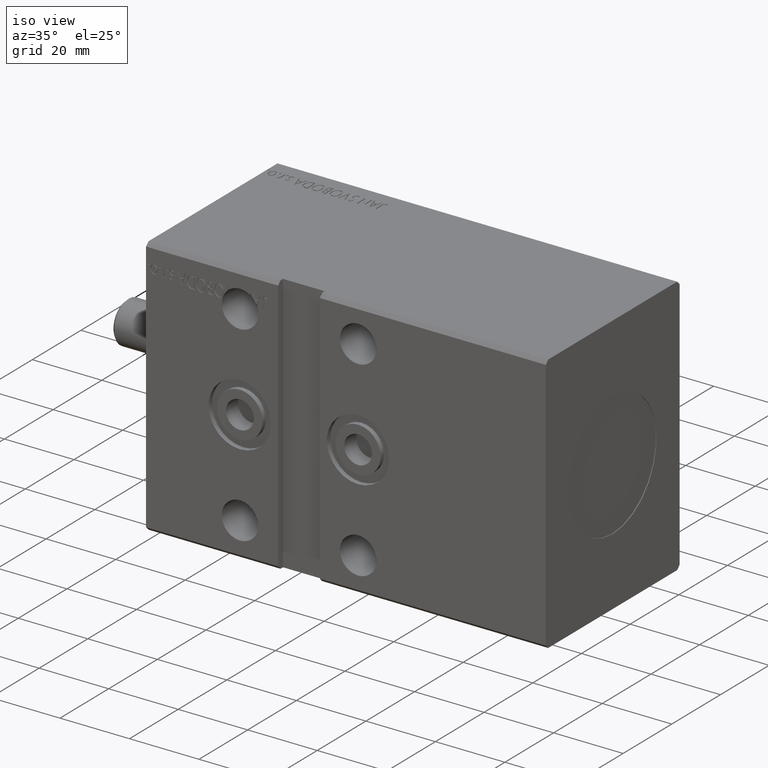
[diagram: clean part render]
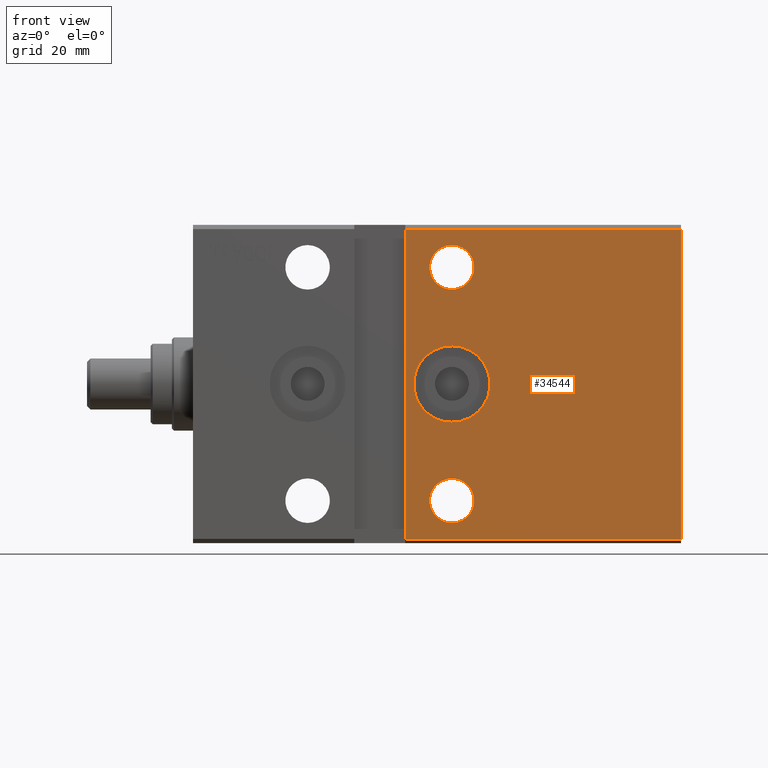
[diagram: tour spotlight — one face highlighted and labeled with its STEP entity id]
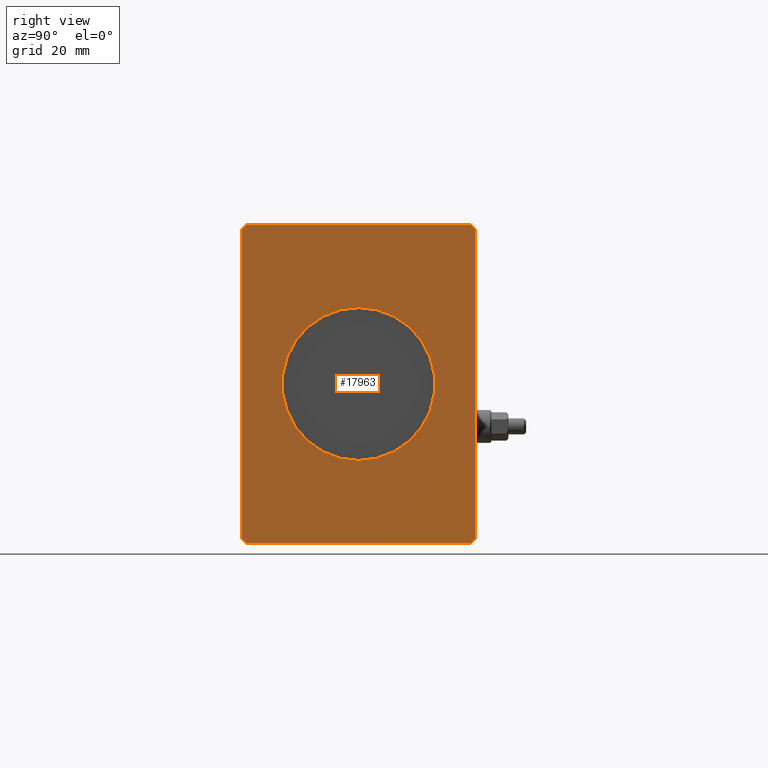
[diagram: tour spotlight — one face highlighted and labeled with its STEP entity id]
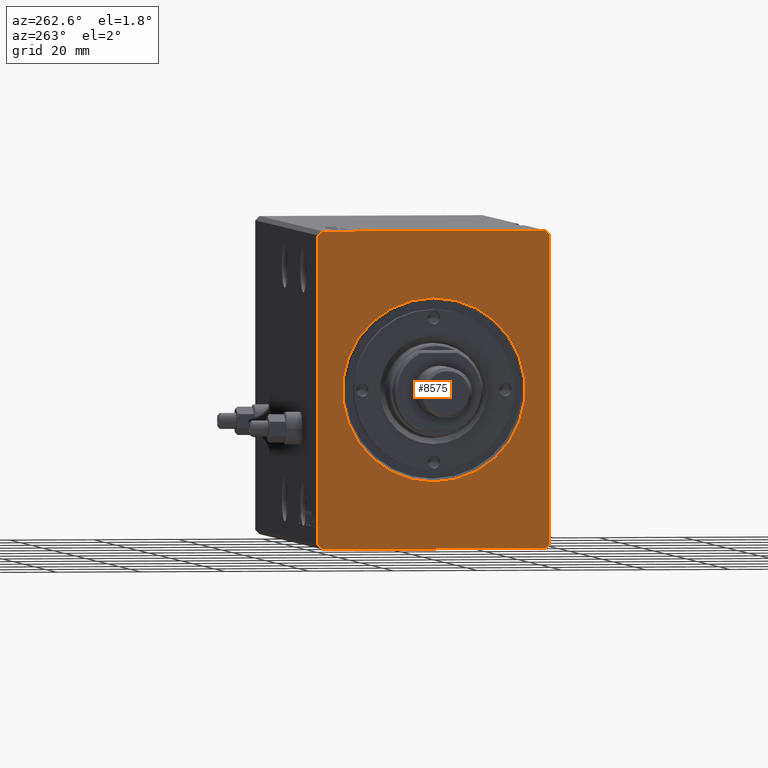
[diagram: tour spotlight — one face highlighted and labeled with its STEP entity id]
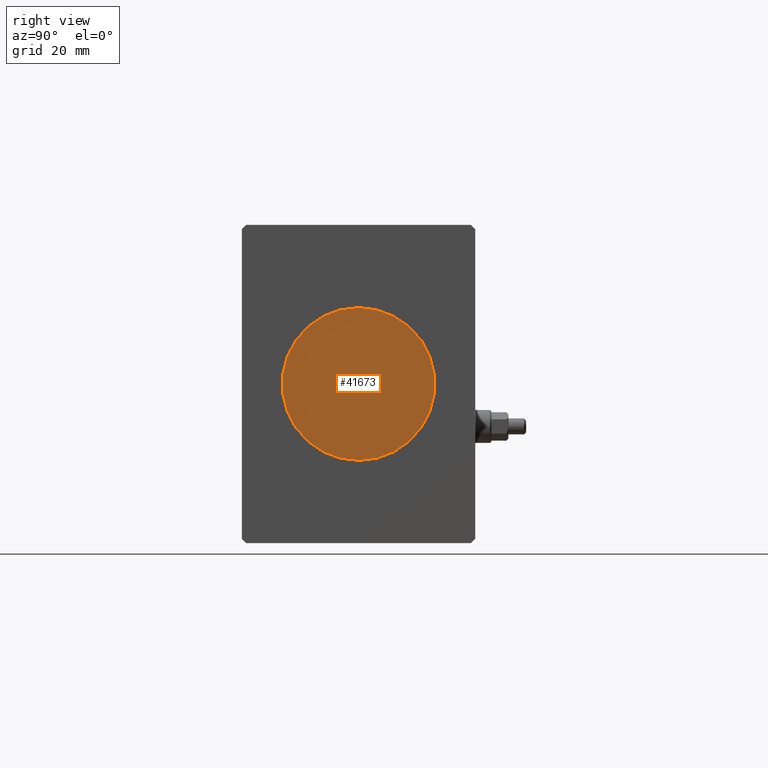
[diagram: tour spotlight — one face highlighted and labeled with its STEP entity id]
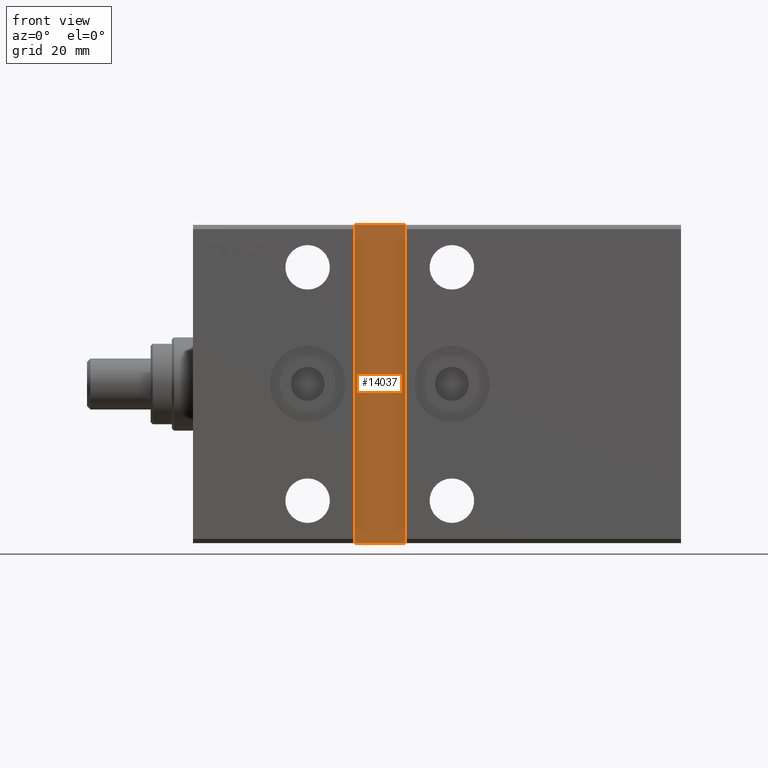
[diagram: tour spotlight — one face highlighted and labeled with its STEP entity id]
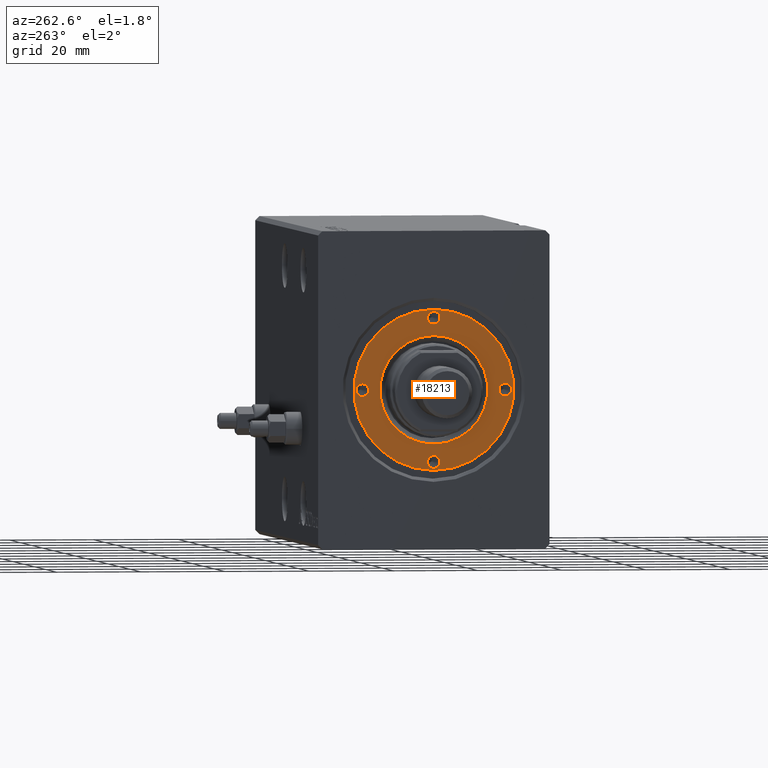
[diagram: tour spotlight — one face highlighted and labeled with its STEP entity id]
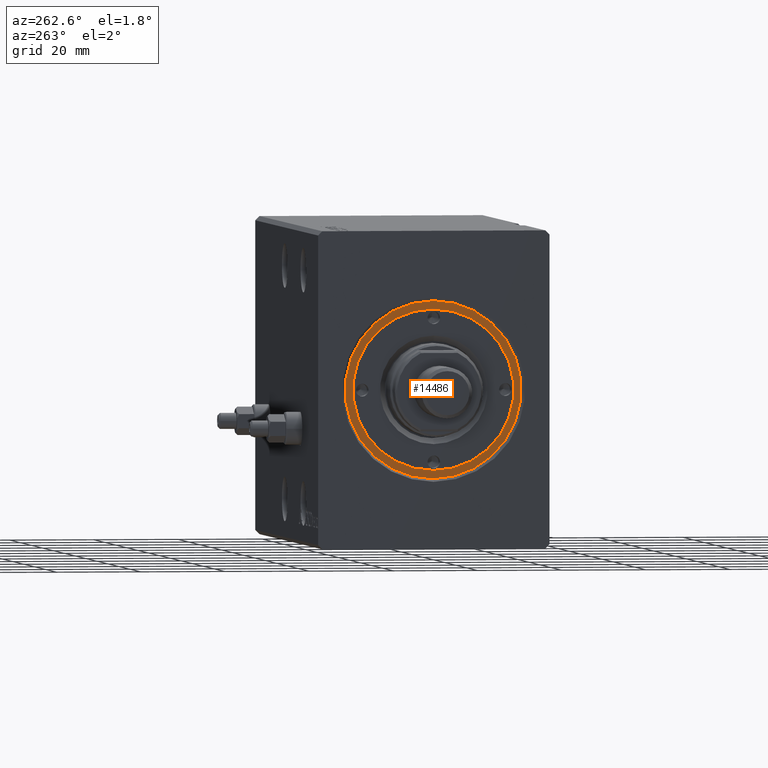
[diagram: tour spotlight — one face highlighted and labeled with its STEP entity id]
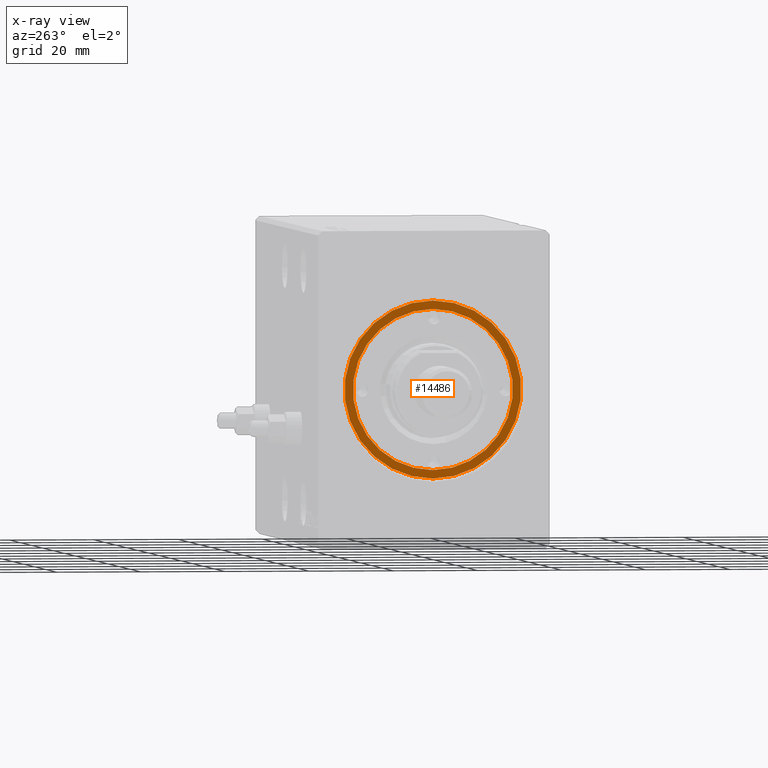
[diagram: x-ray of the same camera — body ghosted, this tour face saturated]
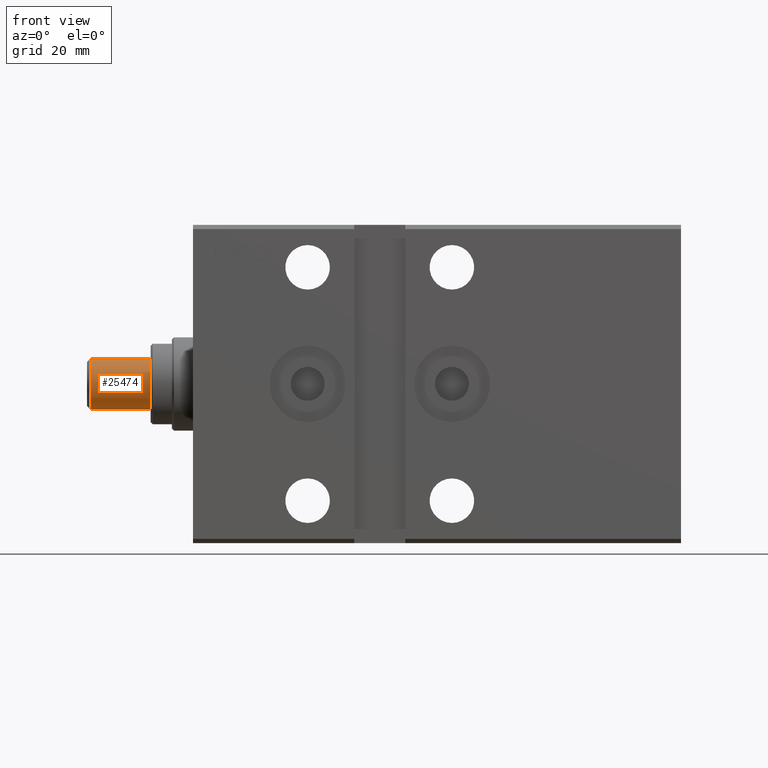
[diagram: tour spotlight — one face highlighted and labeled with its STEP entity id]
A machine part: a face-by-face anatomy tour. The part has 862 B-rep faces; the first image is the clean iso view, then the 8 largest visible faces are spotlighted one at a time (largest first), each with its STEP entity span.

Face 1 — front view, entity #34544. In plain terms, the highlighted planar face has unit normal (0, 1, 0).
Definition (entity closure, byte-faithful):
#166 = CARTESIAN_POINT ( 'NONE',  ( 115.0000000000000000, -27.50000000000000711, 36.50000000000000711 ) ) ;
#255 = EDGE_CURVE ( 'NONE', #34606, #4152, #31248, .T. ) ;
#677 = DIRECTION ( 'NONE',  ( -0.000000000000000000, 1.000000000000000000, 4.752667057470705491E-17 ) ) ;
#1384 = EDGE_CURVE ( 'NONE', #13478, #39769, #4137, .T. ) ;
#2053 = EDGE_LOOP ( 'NONE', ( #22631, #32418 ) ) ;
#2115 = FACE_BOUND ( 'NONE', #2053, .T. ) ;
#2749 = EDGE_CURVE ( 'NONE', #39769, #13478, #38048, .T. ) ;
#3159 = EDGE_CURVE ( 'NONE', #33649, #12623, #20327, .T. ) ;
#3267 = VECTOR ( 'NONE', #7311, 1000.000000000000000 ) ;
#3487 = AXIS2_PLACEMENT_3D ( 'NONE', #33145, #677, #39491 ) ;
#3523 = EDGE_CURVE ( 'NONE', #14641, #39570, #24526, .T. ) ;
#4037 = CARTESIAN_POINT ( 'NONE',  ( 61.00000000000000711, -27.50000000000000355, -32.75000000000000000 ) ) ;
#4137 = CIRCLE ( 'NONE', #33290, 5.249999999999997335 ) ;
#4152 = VERTEX_POINT ( 'NONE', #37932 ) ;
#4201 = AXIS2_PLACEMENT_3D ( 'NONE', #9587, #31334, #24740 ) ;
#4938 = VECTOR ( 'NONE', #30316, 1000.000000000000000 ) ;
#5142 = DIRECTION ( 'NONE',  ( 0.000000000000000000, 0.000000000000000000, 1.000000000000000000 ) ) ;
#5999 = EDGE_CURVE ( 'NONE', #12623, #19579, #16936, .T. ) ;
#7311 = DIRECTION ( 'NONE',  ( 0.000000000000000000, 4.752667057470705491E-17, -1.000000000000000000 ) ) ;
#8339 = DIRECTION ( 'NONE',  ( 0.000000000000000000, 0.000000000000000000, 1.000000000000000000 ) ) ;
#9192 = VECTOR ( 'NONE', #28822, 1000.000000000000000 ) ;
#9218 = DIRECTION ( 'NONE',  ( 0.000000000000000000, 0.000000000000000000, 1.000000000000000000 ) ) ;
#9587 = CARTESIAN_POINT ( 'NONE',  ( 61.00000000000000000, -27.50000000000000355, 27.49999999999999645 ) ) ;
#11768 = CARTESIAN_POINT ( 'NONE',  ( 61.00000000000000711, -27.50000000000000355, -27.50000000000000355 ) ) ;
#11846 = CARTESIAN_POINT ( 'NONE',  ( 115.0000000000000000, -27.50000000000000711, 36.50000000000000711 ) ) ;
#12623 = VERTEX_POINT ( 'NONE', #38634 ) ;
#12993 = CARTESIAN_POINT ( 'NONE',  ( 61.00000000000000000, -27.50000000000000355, -4.082078227610672633E-15 ) ) ;
#13291 = EDGE_CURVE ( 'NONE', #39570, #14641, #30478, .T. ) ;
#13404 = DIRECTION ( 'NONE',  ( -0.000000000000000000, 1.000000000000000000, 5.507058653894625853E-17 ) ) ;
#13478 = VERTEX_POINT ( 'NONE', #4037 ) ;
#14440 = EDGE_LOOP ( 'NONE', ( #21081, #30601 ) ) ;
#14641 = VERTEX_POINT ( 'NONE', #26061 ) ;
#15022 = FACE_OUTER_BOUND ( 'NONE', #37986, .T. ) ;
#15573 = EDGE_LOOP ( 'NONE', ( #17246, #28867 ) ) ;
#16936 = LINE ( 'NONE', #23513, #4938 ) ;
#17246 = ORIENTED_EDGE ( 'NONE', *, *, #255, .T. ) ;
#17789 = DIRECTION ( 'NONE',  ( -0.000000000000000000, 1.000000000000000000, 4.752667057470705491E-17 ) ) ;
#18158 = EDGE_CURVE ( 'NONE', #4152, #34606, #31328, .T. ) ;
#18252 = ORIENTED_EDGE ( 'NONE', *, *, #28338, .T. ) ;
#18286 = AXIS2_PLACEMENT_3D ( 'NONE', #39937, #34221, #5142 ) ;
#19040 = CARTESIAN_POINT ( 'NONE',  ( 61.00000000000000000, -27.50000000000000355, -9.000000000000000000 ) ) ;
#19446 = LINE ( 'NONE', #166, #9192 ) ;
#19579 = VERTEX_POINT ( 'NONE', #30934 ) ;
#20124 = DIRECTION ( 'NONE',  ( -1.000000000000000000, -0.000000000000000000, -0.000000000000000000 ) ) ;
#20327 = LINE ( 'NONE', #30539, #28576 ) ;
#20437 = AXIS2_PLACEMENT_3D ( 'NONE', #12993, #13404, #32543 ) ;
#20959 = VERTEX_POINT ( 'NONE', #23357 ) ;
#21081 = ORIENTED_EDGE ( 'NONE', *, *, #13291, .F. ) ;
#22087 = AXIS2_PLACEMENT_3D ( 'NONE', #11846, #17789, #24797 ) ;
#22563 = CARTESIAN_POINT ( 'NONE',  ( 61.00000000000000711, -27.50000000000000355, -22.25000000000000711 ) ) ;
#22631 = ORIENTED_EDGE ( 'NONE', *, *, #1384, .T. ) ;
#23357 = CARTESIAN_POINT ( 'NONE',  ( 115.0000000000000000, -27.50000000000000711, 36.50000000000000711 ) ) ;
#23513 = CARTESIAN_POINT ( 'NONE',  ( 49.99999999999999289, -27.50000000000000711, 37.50000000000000711 ) ) ;
#24526 = CIRCLE ( 'NONE', #4201, 5.250000000000004441 ) ;
#24740 = DIRECTION ( 'NONE',  ( 0.000000000000000000, 0.000000000000000000, 1.000000000000000000 ) ) ;
#24797 = DIRECTION ( 'NONE',  ( 0.000000000000000000, -4.752667057470705491E-17, 1.000000000000000000 ) ) ;
#25810 = ORIENTED_EDGE ( 'NONE', *, *, #3159, .F. ) ;
#26061 = CARTESIAN_POINT ( 'NONE',  ( 61.00000000000000000, -27.50000000000000355, 32.75000000000000000 ) ) ;
#27103 = CARTESIAN_POINT ( 'NONE',  ( 115.0000000000000000, -27.50000000000000355, -36.49999999999998579 ) ) ;
#27499 = CARTESIAN_POINT ( 'NONE',  ( 115.0000000000000000, -27.50000000000000711, 36.50000000000000711 ) ) ;
#27996 = FACE_BOUND ( 'NONE', #14440, .T. ) ;
#28338 = EDGE_CURVE ( 'NONE', #20959, #19579, #19446, .T. ) ;
#28576 = VECTOR ( 'NONE', #20124, 1000.000000000000000 ) ;
#28822 = DIRECTION ( 'NONE',  ( -1.000000000000000000, -0.000000000000000000, -0.000000000000000000 ) ) ;
#28867 = ORIENTED_EDGE ( 'NONE', *, *, #18158, .T. ) ;
#29833 = LINE ( 'NONE', #27499, #3267 ) ;
#30316 = DIRECTION ( 'NONE',  ( -1.850371707708594316E-16, -9.251858538542971581E-17, 1.000000000000000000 ) ) ;
#30478 = CIRCLE ( 'NONE', #18286, 5.250000000000004441 ) ;
#30539 = CARTESIAN_POINT ( 'NONE',  ( 115.0000000000000000, -27.50000000000000355, -36.49999999999998579 ) ) ;
#30601 = ORIENTED_EDGE ( 'NONE', *, *, #3523, .F. ) ;
#30934 = CARTESIAN_POINT ( 'NONE',  ( 49.99999999999999289, -27.50000000000000711, 36.50000000000000711 ) ) ;
#31248 = CIRCLE ( 'NONE', #38679, 8.999999999999996447 ) ;
#31328 = CIRCLE ( 'NONE', #20437, 8.999999999999996447 ) ;
#31334 = DIRECTION ( 'NONE',  ( 0.000000000000000000, -1.000000000000000000, -4.752667057470705491E-17 ) ) ;
#32418 = ORIENTED_EDGE ( 'NONE', *, *, #2749, .T. ) ;
#32543 = DIRECTION ( 'NONE',  ( 0.000000000000000000, 0.000000000000000000, 1.000000000000000000 ) ) ;
#33145 = CARTESIAN_POINT ( 'NONE',  ( 61.00000000000000711, -27.50000000000000355, -27.50000000000000355 ) ) ;
#33290 = AXIS2_PLACEMENT_3D ( 'NONE', #11768, #37885, #9218 ) ;
#33649 = VERTEX_POINT ( 'NONE', #27103 ) ;
#34221 = DIRECTION ( 'NONE',  ( 0.000000000000000000, -1.000000000000000000, -4.752667057470705491E-17 ) ) ;
#34544 = ADVANCED_FACE ( 'NONE', ( #34788, #2115, #15022, #27996 ), #40943, .F. ) ;
#34606 = VERTEX_POINT ( 'NONE', #19040 ) ;
#34674 = CARTESIAN_POINT ( 'NONE',  ( 61.00000000000000000, -27.50000000000000355, -4.082078227610672633E-15 ) ) ;
#34788 = FACE_BOUND ( 'NONE', #15573, .T. ) ;
#36402 = CARTESIAN_POINT ( 'NONE',  ( 61.00000000000000000, -27.50000000000000355, 22.24999999999999289 ) ) ;
#37431 = DIRECTION ( 'NONE',  ( -0.000000000000000000, 1.000000000000000000, 5.507058653894625853E-17 ) ) ;
#37885 = DIRECTION ( 'NONE',  ( -0.000000000000000000, 1.000000000000000000, 4.752667057470705491E-17 ) ) ;
#37932 = CARTESIAN_POINT ( 'NONE',  ( 61.00000000000000000, -27.50000000000000355, 8.999999999999992895 ) ) ;
#37986 = EDGE_LOOP ( 'NONE', ( #18252, #39853, #25810, #38573 ) ) ;
#38048 = CIRCLE ( 'NONE', #3487, 5.249999999999997335 ) ;
#38573 = ORIENTED_EDGE ( 'NONE', *, *, #39571, .F. ) ;
#38634 = CARTESIAN_POINT ( 'NONE',  ( 50.00000000000000711, -27.50000000000000000, -36.49999999999997868 ) ) ;
#38679 = AXIS2_PLACEMENT_3D ( 'NONE', #34674, #37431, #8339 ) ;
#39491 = DIRECTION ( 'NONE',  ( 0.000000000000000000, 0.000000000000000000, 1.000000000000000000 ) ) ;
#39570 = VERTEX_POINT ( 'NONE', #36402 ) ;
#39571 = EDGE_CURVE ( 'NONE', #20959, #33649, #29833, .T. ) ;
#39769 = VERTEX_POINT ( 'NONE', #22563 ) ;
#39853 = ORIENTED_EDGE ( 'NONE', *, *, #5999, .F. ) ;
#39937 = CARTESIAN_POINT ( 'NONE',  ( 61.00000000000000000, -27.50000000000000355, 27.49999999999999645 ) ) ;
#40943 = PLANE ( 'NONE',  #22087 ) ;

Face 2 — right view, entity #17963. In plain terms, the highlighted planar face has unit normal (1, 0, 0).
Definition (entity closure, byte-faithful):
#472 = VECTOR ( 'NONE', #3783, 1000.000000000000114 ) ;
#1629 = ORIENTED_EDGE ( 'NONE', *, *, #36213, .F. ) ;
#2178 = DIRECTION ( 'NONE',  ( 0.000000000000000000, 0.000000000000000000, -1.000000000000000000 ) ) ;
#2484 = EDGE_CURVE ( 'NONE', #24351, #36720, #11306, .T. ) ;
#2858 = CARTESIAN_POINT ( 'NONE',  ( 115.0000000000000000, 26.50000000000000355, 37.50000000000000711 ) ) ;
#3267 = VECTOR ( 'NONE', #7311, 1000.000000000000000 ) ;
#3783 = DIRECTION ( 'NONE',  ( 0.000000000000000000, 0.7071067811865451302, -0.7071067811865500152 ) ) ;
#4118 = EDGE_CURVE ( 'NONE', #28188, #12712, #10969, .T. ) ;
#4619 = CARTESIAN_POINT ( 'NONE',  ( 115.0000000000000000, 27.50000000000000711, -36.49999999999999289 ) ) ;
#4651 = DIRECTION ( 'NONE',  ( 0.000000000000000000, 0.7071067811865474617, 0.7071067811865474617 ) ) ;
#5410 = CARTESIAN_POINT ( 'NONE',  ( 115.0000000000000000, 27.50000000000000355, 36.50000000000000711 ) ) ;
#5444 = FACE_BOUND ( 'NONE', #10559, .T. ) ;
#6282 = CARTESIAN_POINT ( 'NONE',  ( 115.0000000000000000, 0.000000000000000000, -18.00000000000000000 ) ) ;
#6557 = VERTEX_POINT ( 'NONE', #35503 ) ;
#7311 = DIRECTION ( 'NONE',  ( 0.000000000000000000, 4.752667057470705491E-17, -1.000000000000000000 ) ) ;
#7486 = ORIENTED_EDGE ( 'NONE', *, *, #9987, .T. ) ;
#8886 = ORIENTED_EDGE ( 'NONE', *, *, #39571, .T. ) ;
#9987 = EDGE_CURVE ( 'NONE', #23995, #6557, #10161, .T. ) ;
#10161 = LINE ( 'NONE', #36484, #16115 ) ;
#10559 = EDGE_LOOP ( 'NONE', ( #19498, #1629 ) ) ;
#10569 = VERTEX_POINT ( 'NONE', #13352 ) ;
#10969 = CIRCLE ( 'NONE', #17735, 18.00000000000000000 ) ;
#11067 = CARTESIAN_POINT ( 'NONE',  ( 115.0000000000000000, 0.000000000000000000, 0.000000000000000000 ) ) ;
#11306 = LINE ( 'NONE', #24257, #17700 ) ;
#11631 = CARTESIAN_POINT ( 'NONE',  ( 115.0000000000000000, 26.50000000000000711, -37.49999999999999289 ) ) ;
#12003 = PLANE ( 'NONE',  #17049 ) ;
#12712 = VERTEX_POINT ( 'NONE', #29918 ) ;
#12833 = LINE ( 'NONE', #16435, #36300 ) ;
#13049 = EDGE_CURVE ( 'NONE', #23666, #10569, #13920, .T. ) ;
#13352 = CARTESIAN_POINT ( 'NONE',  ( 115.0000000000000000, -26.50000000000000711, 37.50000000000000711 ) ) ;
#13920 = LINE ( 'NONE', #40041, #35251 ) ;
#14254 = EDGE_LOOP ( 'NONE', ( #33291, #41777, #40661, #8886, #32266, #7486, #33399, #18455 ) ) ;
#14582 = DIRECTION ( 'NONE',  ( 1.000000000000000000, 0.000000000000000000, 0.000000000000000000 ) ) ;
#14995 = VECTOR ( 'NONE', #23043, 1000.000000000000114 ) ;
#16115 = VECTOR ( 'NONE', #16747, 1000.000000000000000 ) ;
#16435 = CARTESIAN_POINT ( 'NONE',  ( 115.0000000000000000, 27.50000000000000355, 36.50000000000000711 ) ) ;
#16707 = CARTESIAN_POINT ( 'NONE',  ( 115.0000000000000000, -27.50000000000000355, -36.49999999999998579 ) ) ;
#16747 = DIRECTION ( 'NONE',  ( 0.000000000000000000, 1.000000000000000000, 0.000000000000000000 ) ) ;
#17001 = EDGE_CURVE ( 'NONE', #10569, #20959, #39391, .T. ) ;
#17049 = AXIS2_PLACEMENT_3D ( 'NONE', #40470, #20929, #31342 ) ;
#17700 = VECTOR ( 'NONE', #18097, 1000.000000000000000 ) ;
#17735 = AXIS2_PLACEMENT_3D ( 'NONE', #27548, #14582, #26909 ) ;
#17963 = ADVANCED_FACE ( 'NONE', ( #5444, #24113 ), #12003, .T. ) ;
#18097 = DIRECTION ( 'NONE',  ( 0.000000000000000000, -4.752667057470704875E-17, 1.000000000000000000 ) ) ;
#18455 = ORIENTED_EDGE ( 'NONE', *, *, #2484, .T. ) ;
#19498 = ORIENTED_EDGE ( 'NONE', *, *, #4118, .F. ) ;
#20929 = DIRECTION ( 'NONE',  ( 1.000000000000000000, 0.000000000000000000, 0.000000000000000000 ) ) ;
#20959 = VERTEX_POINT ( 'NONE', #23357 ) ;
#22531 = EDGE_CURVE ( 'NONE', #6557, #24351, #27788, .T. ) ;
#23043 = DIRECTION ( 'NONE',  ( 0.000000000000000000, -0.7071067811865474617, -0.7071067811865474617 ) ) ;
#23357 = CARTESIAN_POINT ( 'NONE',  ( 115.0000000000000000, -27.50000000000000711, 36.50000000000000711 ) ) ;
#23666 = VERTEX_POINT ( 'NONE', #2858 ) ;
#23995 = VERTEX_POINT ( 'NONE', #27386 ) ;
#24113 = FACE_OUTER_BOUND ( 'NONE', #14254, .T. ) ;
#24257 = CARTESIAN_POINT ( 'NONE',  ( 115.0000000000000000, 27.50000000000000711, -36.49999999999999289 ) ) ;
#24351 = VERTEX_POINT ( 'NONE', #4619 ) ;
#26909 = DIRECTION ( 'NONE',  ( 0.000000000000000000, 0.000000000000000000, -1.000000000000000000 ) ) ;
#27103 = CARTESIAN_POINT ( 'NONE',  ( 115.0000000000000000, -27.50000000000000355, -36.49999999999998579 ) ) ;
#27386 = CARTESIAN_POINT ( 'NONE',  ( 115.0000000000000000, -26.50000000000000355, -37.49999999999999289 ) ) ;
#27499 = CARTESIAN_POINT ( 'NONE',  ( 115.0000000000000000, -27.50000000000000711, 36.50000000000000711 ) ) ;
#27548 = CARTESIAN_POINT ( 'NONE',  ( 115.0000000000000000, 0.000000000000000000, 0.000000000000000000 ) ) ;
#27590 = CIRCLE ( 'NONE', #38431, 18.00000000000000000 ) ;
#27788 = LINE ( 'NONE', #11631, #31414 ) ;
#28188 = VERTEX_POINT ( 'NONE', #6282 ) ;
#29645 = CARTESIAN_POINT ( 'NONE',  ( 115.0000000000000000, -26.50000000000000711, 37.50000000000000711 ) ) ;
#29649 = EDGE_CURVE ( 'NONE', #36720, #23666, #12833, .T. ) ;
#29833 = LINE ( 'NONE', #27499, #3267 ) ;
#29918 = CARTESIAN_POINT ( 'NONE',  ( 115.0000000000000000, 2.204364238465235428E-15, 18.00000000000000000 ) ) ;
#31342 = DIRECTION ( 'NONE',  ( 0.000000000000000000, 0.000000000000000000, -1.000000000000000000 ) ) ;
#31414 = VECTOR ( 'NONE', #4651, 1000.000000000000114 ) ;
#32266 = ORIENTED_EDGE ( 'NONE', *, *, #35438, .T. ) ;
#33261 = DIRECTION ( 'NONE',  ( 0.000000000000000000, -1.000000000000000000, 0.000000000000000000 ) ) ;
#33291 = ORIENTED_EDGE ( 'NONE', *, *, #29649, .T. ) ;
#33399 = ORIENTED_EDGE ( 'NONE', *, *, #22531, .T. ) ;
#33649 = VERTEX_POINT ( 'NONE', #27103 ) ;
#34225 = DIRECTION ( 'NONE',  ( 1.000000000000000000, 0.000000000000000000, 0.000000000000000000 ) ) ;
#35251 = VECTOR ( 'NONE', #33261, 1000.000000000000000 ) ;
#35438 = EDGE_CURVE ( 'NONE', #33649, #23995, #35626, .T. ) ;
#35503 = CARTESIAN_POINT ( 'NONE',  ( 115.0000000000000000, 26.50000000000000711, -37.49999999999999289 ) ) ;
#35626 = LINE ( 'NONE', #16707, #472 ) ;
#36213 = EDGE_CURVE ( 'NONE', #12712, #28188, #27590, .T. ) ;
#36300 = VECTOR ( 'NONE', #41939, 1000.000000000000114 ) ;
#36484 = CARTESIAN_POINT ( 'NONE',  ( 115.0000000000000000, -26.50000000000000355, -37.49999999999999289 ) ) ;
#36720 = VERTEX_POINT ( 'NONE', #5410 ) ;
#38431 = AXIS2_PLACEMENT_3D ( 'NONE', #11067, #34225, #2178 ) ;
#39391 = LINE ( 'NONE', #29645, #14995 ) ;
#39571 = EDGE_CURVE ( 'NONE', #20959, #33649, #29833, .T. ) ;
#40041 = CARTESIAN_POINT ( 'NONE',  ( 115.0000000000000000, 26.50000000000000355, 37.50000000000000711 ) ) ;
#40470 = CARTESIAN_POINT ( 'NONE',  ( 115.0000000000000000, 0.000000000000000000, 0.000000000000000000 ) ) ;
#40661 = ORIENTED_EDGE ( 'NONE', *, *, #17001, .T. ) ;
#41777 = ORIENTED_EDGE ( 'NONE', *, *, #13049, .T. ) ;
#41939 = DIRECTION ( 'NONE',  ( 0.000000000000000000, -0.7071067811865474617, 0.7071067811865474617 ) ) ;

Face 3 — auxiliary view, entity #8575. In plain terms, the highlighted planar face has unit normal (1, 0, 0).
Definition (entity closure, byte-faithful):
#1672 = FACE_OUTER_BOUND ( 'NONE', #23033, .T. ) ;
#2979 = EDGE_LOOP ( 'NONE', ( #29890, #38625 ) ) ;
#3245 = VERTEX_POINT ( 'NONE', #25206 ) ;
#3864 = CARTESIAN_POINT ( 'NONE',  ( 0.000000000000000000, 2.657483554149761471E-15, -21.70000000000003837 ) ) ;
#3937 = CARTESIAN_POINT ( 'NONE',  ( 0.000000000000000000, 26.50000000000000711, -37.49999999999999289 ) ) ;
#3982 = CARTESIAN_POINT ( 'NONE',  ( 0.000000000000000000, 27.50000000000000355, 36.50000000000000711 ) ) ;
#4722 = EDGE_CURVE ( 'NONE', #13215, #9580, #27860, .T. ) ;
#5394 = EDGE_CURVE ( 'NONE', #20979, #22885, #32030, .T. ) ;
#5423 = CARTESIAN_POINT ( 'NONE',  ( 0.000000000000000000, 0.000000000000000000, 0.000000000000000000 ) ) ;
#6176 = CARTESIAN_POINT ( 'NONE',  ( 0.000000000000000000, 0.000000000000000000, 21.70000000000003837 ) ) ;
#6754 = LINE ( 'NONE', #35229, #13795 ) ;
#7387 = ORIENTED_EDGE ( 'NONE', *, *, #24865, .F. ) ;
#7823 = LINE ( 'NONE', #24170, #38960 ) ;
#8280 = VERTEX_POINT ( 'NONE', #27015 ) ;
#8575 = ADVANCED_FACE ( 'NONE', ( #27125, #1672 ), #36887, .F. ) ;
#8831 = EDGE_CURVE ( 'NONE', #8280, #9414, #38559, .T. ) ;
#9414 = VERTEX_POINT ( 'NONE', #23987 ) ;
#9580 = VERTEX_POINT ( 'NONE', #34675 ) ;
#9649 = ORIENTED_EDGE ( 'NONE', *, *, #10883, .F. ) ;
#9686 = CARTESIAN_POINT ( 'NONE',  ( 0.000000000000000000, 0.000000000000000000, 0.000000000000000000 ) ) ;
#9870 = VERTEX_POINT ( 'NONE', #38627 ) ;
#9911 = LINE ( 'NONE', #3982, #16827 ) ;
#10031 = ORIENTED_EDGE ( 'NONE', *, *, #8831, .F. ) ;
#10590 = DIRECTION ( 'NONE',  ( 0.000000000000000000, 4.752667057470705491E-17, -1.000000000000000000 ) ) ;
#10883 = EDGE_CURVE ( 'NONE', #9580, #8280, #9911, .T. ) ;
#13215 = VERTEX_POINT ( 'NONE', #14879 ) ;
#13795 = VECTOR ( 'NONE', #41597, 1000.000000000000000 ) ;
#14685 = DIRECTION ( 'NONE',  ( 0.000000000000000000, -4.752667057470704875E-17, 1.000000000000000000 ) ) ;
#14879 = CARTESIAN_POINT ( 'NONE',  ( 0.000000000000000000, 27.50000000000000711, -36.49999999999999289 ) ) ;
#16827 = VECTOR ( 'NONE', #23269, 1000.000000000000114 ) ;
#17766 = DIRECTION ( 'NONE',  ( 0.000000000000000000, 0.000000000000000000, -1.000000000000000000 ) ) ;
#19467 = VECTOR ( 'NONE', #27072, 1000.000000000000000 ) ;
#19897 = VERTEX_POINT ( 'NONE', #3937 ) ;
#20771 = DIRECTION ( 'NONE',  ( 0.000000000000000000, 0.7071067811865474617, 0.7071067811865474617 ) ) ;
#20779 = LINE ( 'NONE', #36709, #22713 ) ;
#20979 = VERTEX_POINT ( 'NONE', #3864 ) ;
#22011 = DIRECTION ( 'NONE',  ( 1.000000000000000000, 0.000000000000000000, 0.000000000000000000 ) ) ;
#22024 = VECTOR ( 'NONE', #38053, 1000.000000000000114 ) ;
#22713 = VECTOR ( 'NONE', #10590, 1000.000000000000000 ) ;
#22879 = VERTEX_POINT ( 'NONE', #41422 ) ;
#22885 = VERTEX_POINT ( 'NONE', #6176 ) ;
#23033 = EDGE_LOOP ( 'NONE', ( #9649, #36328, #38659, #7387, #32583, #36843, #31110, #10031 ) ) ;
#23061 = DIRECTION ( 'NONE',  ( 0.000000000000000000, 0.7071067811865451302, -0.7071067811865500152 ) ) ;
#23269 = DIRECTION ( 'NONE',  ( 0.000000000000000000, -0.7071067811865474617, 0.7071067811865474617 ) ) ;
#23987 = CARTESIAN_POINT ( 'NONE',  ( 0.000000000000000000, -26.50000000000000711, 37.50000000000000711 ) ) ;
#24139 = DIRECTION ( 'NONE',  ( 1.000000000000000000, 0.000000000000000000, 0.000000000000000000 ) ) ;
#24170 = CARTESIAN_POINT ( 'NONE',  ( 0.000000000000000000, 26.50000000000000711, -37.49999999999999289 ) ) ;
#24865 = EDGE_CURVE ( 'NONE', #22879, #19897, #6754, .T. ) ;
#25140 = DIRECTION ( 'NONE',  ( 0.000000000000000000, 0.000000000000000000, -1.000000000000000000 ) ) ;
#25206 = CARTESIAN_POINT ( 'NONE',  ( 0.000000000000000000, -27.50000000000000711, 36.50000000000000711 ) ) ;
#25433 = LINE ( 'NONE', #39001, #38398 ) ;
#27015 = CARTESIAN_POINT ( 'NONE',  ( 0.000000000000000000, 26.50000000000000355, 37.50000000000000711 ) ) ;
#27072 = DIRECTION ( 'NONE',  ( 0.000000000000000000, -1.000000000000000000, 0.000000000000000000 ) ) ;
#27125 = FACE_BOUND ( 'NONE', #2979, .T. ) ;
#27573 = EDGE_CURVE ( 'NONE', #3245, #9870, #20779, .T. ) ;
#27860 = LINE ( 'NONE', #30837, #38795 ) ;
#28391 = EDGE_CURVE ( 'NONE', #22885, #20979, #39658, .T. ) ;
#28728 = AXIS2_PLACEMENT_3D ( 'NONE', #37316, #24139, #17766 ) ;
#29890 = ORIENTED_EDGE ( 'NONE', *, *, #28391, .T. ) ;
#30686 = EDGE_CURVE ( 'NONE', #19897, #13215, #7823, .T. ) ;
#30837 = CARTESIAN_POINT ( 'NONE',  ( 0.000000000000000000, 27.50000000000000711, -36.49999999999999289 ) ) ;
#31110 = ORIENTED_EDGE ( 'NONE', *, *, #31845, .F. ) ;
#31845 = EDGE_CURVE ( 'NONE', #9414, #3245, #32114, .T. ) ;
#32030 = CIRCLE ( 'NONE', #39457, 21.70000000000003837 ) ;
#32114 = LINE ( 'NONE', #41668, #22024 ) ;
#32583 = ORIENTED_EDGE ( 'NONE', *, *, #35469, .F. ) ;
#32922 = AXIS2_PLACEMENT_3D ( 'NONE', #9686, #22011, #38158 ) ;
#34675 = CARTESIAN_POINT ( 'NONE',  ( 0.000000000000000000, 27.50000000000000355, 36.50000000000000711 ) ) ;
#35229 = CARTESIAN_POINT ( 'NONE',  ( 0.000000000000000000, -26.50000000000000355, -37.49999999999999289 ) ) ;
#35469 = EDGE_CURVE ( 'NONE', #9870, #22879, #25433, .T. ) ;
#35800 = CARTESIAN_POINT ( 'NONE',  ( 0.000000000000000000, 26.50000000000000355, 37.50000000000000711 ) ) ;
#36328 = ORIENTED_EDGE ( 'NONE', *, *, #4722, .F. ) ;
#36709 = CARTESIAN_POINT ( 'NONE',  ( 0.000000000000000000, -27.50000000000000711, 36.50000000000000711 ) ) ;
#36843 = ORIENTED_EDGE ( 'NONE', *, *, #27573, .F. ) ;
#36887 = PLANE ( 'NONE',  #28728 ) ;
#37316 = CARTESIAN_POINT ( 'NONE',  ( 0.000000000000000000, 0.000000000000000000, 0.000000000000000000 ) ) ;
#38053 = DIRECTION ( 'NONE',  ( 0.000000000000000000, -0.7071067811865474617, -0.7071067811865474617 ) ) ;
#38158 = DIRECTION ( 'NONE',  ( 0.000000000000000000, 0.000000000000000000, -1.000000000000000000 ) ) ;
#38398 = VECTOR ( 'NONE', #23061, 1000.000000000000114 ) ;
#38559 = LINE ( 'NONE', #35800, #19467 ) ;
#38625 = ORIENTED_EDGE ( 'NONE', *, *, #5394, .T. ) ;
#38627 = CARTESIAN_POINT ( 'NONE',  ( 0.000000000000000000, -27.50000000000000355, -36.49999999999998579 ) ) ;
#38659 = ORIENTED_EDGE ( 'NONE', *, *, #30686, .F. ) ;
#38795 = VECTOR ( 'NONE', #14685, 1000.000000000000000 ) ;
#38960 = VECTOR ( 'NONE', #20771, 1000.000000000000114 ) ;
#39001 = CARTESIAN_POINT ( 'NONE',  ( 0.000000000000000000, -27.50000000000000355, -36.49999999999998579 ) ) ;
#39457 = AXIS2_PLACEMENT_3D ( 'NONE', #5423, #40867, #25140 ) ;
#39658 = CIRCLE ( 'NONE', #32922, 21.70000000000003837 ) ;
#40867 = DIRECTION ( 'NONE',  ( 1.000000000000000000, 0.000000000000000000, 0.000000000000000000 ) ) ;
#41422 = CARTESIAN_POINT ( 'NONE',  ( 0.000000000000000000, -26.50000000000000355, -37.49999999999999289 ) ) ;
#41597 = DIRECTION ( 'NONE',  ( 0.000000000000000000, 1.000000000000000000, 0.000000000000000000 ) ) ;
#41668 = CARTESIAN_POINT ( 'NONE',  ( 0.000000000000000000, -26.50000000000000711, 37.50000000000000711 ) ) ;

Face 4 — right view, entity #41673. In plain terms, the highlighted planar face has unit normal (1, 0, 0).
Definition (entity closure, byte-faithful):
#3236 = DIRECTION ( 'NONE',  ( 1.000000000000000000, 0.000000000000000000, 0.000000000000000000 ) ) ;
#4679 = EDGE_CURVE ( 'NONE', #39445, #29747, #15064, .T. ) ;
#5569 = ORIENTED_EDGE ( 'NONE', *, *, #41908, .T. ) ;
#6194 = CARTESIAN_POINT ( 'NONE',  ( 114.7999999999999972, 0.000000000000000000, 0.000000000000000000 ) ) ;
#6404 = DIRECTION ( 'NONE',  ( 0.000000000000000000, 0.000000000000000000, -1.000000000000000000 ) ) ;
#6821 = CARTESIAN_POINT ( 'NONE',  ( 114.7999999999999972, 0.000000000000000000, 0.000000000000000000 ) ) ;
#8530 = CARTESIAN_POINT ( 'NONE',  ( 114.7999999999999972, 0.000000000000000000, 0.000000000000000000 ) ) ;
#10003 = FACE_OUTER_BOUND ( 'NONE', #38749, .T. ) ;
#13893 = ORIENTED_EDGE ( 'NONE', *, *, #4679, .T. ) ;
#15064 = CIRCLE ( 'NONE', #25912, 18.00000000000000000 ) ;
#18210 = AXIS2_PLACEMENT_3D ( 'NONE', #6194, #3236, #6404 ) ;
#19014 = CARTESIAN_POINT ( 'NONE',  ( 114.7999999999999972, 0.000000000000000000, -18.00000000000000000 ) ) ;
#19760 = DIRECTION ( 'NONE',  ( 1.000000000000000000, 0.000000000000000000, 0.000000000000000000 ) ) ;
#20933 = AXIS2_PLACEMENT_3D ( 'NONE', #6821, #19760, #32737 ) ;
#21268 = DIRECTION ( 'NONE',  ( 0.000000000000000000, 0.000000000000000000, -1.000000000000000000 ) ) ;
#22179 = CARTESIAN_POINT ( 'NONE',  ( 114.7999999999999972, 2.204364238465235428E-15, 18.00000000000000000 ) ) ;
#25912 = AXIS2_PLACEMENT_3D ( 'NONE', #8530, #34452, #21268 ) ;
#29747 = VERTEX_POINT ( 'NONE', #22179 ) ;
#32737 = DIRECTION ( 'NONE',  ( 0.000000000000000000, 0.000000000000000000, -1.000000000000000000 ) ) ;
#34452 = DIRECTION ( 'NONE',  ( 1.000000000000000000, 0.000000000000000000, 0.000000000000000000 ) ) ;
#35919 = PLANE ( 'NONE',  #20933 ) ;
#37219 = CIRCLE ( 'NONE', #18210, 18.00000000000000000 ) ;
#38749 = EDGE_LOOP ( 'NONE', ( #13893, #5569 ) ) ;
#39445 = VERTEX_POINT ( 'NONE', #19014 ) ;
#41673 = ADVANCED_FACE ( 'NONE', ( #10003 ), #35919, .T. ) ;
#41908 = EDGE_CURVE ( 'NONE', #29747, #39445, #37219, .T. ) ;

Face 5 — front view, entity #14037. In plain terms, the highlighted planar face has unit normal (0, -1, -0).
Definition (entity closure, byte-faithful):
#1712 = EDGE_CURVE ( 'NONE', #32830, #26502, #18090, .T. ) ;
#2742 = LINE ( 'NONE', #39195, #19383 ) ;
#5103 = CARTESIAN_POINT ( 'NONE',  ( 49.99999999999999289, -25.50000000000000711, 37.50000000000000711 ) ) ;
#6731 = DIRECTION ( 'NONE',  ( -1.000000000000000000, -0.000000000000000000, -0.000000000000000000 ) ) ;
#6881 = CARTESIAN_POINT ( 'NONE',  ( 38.00000000000000711, -25.50000000000000355, -37.49999999999999289 ) ) ;
#7506 = VECTOR ( 'NONE', #28491, 1000.000000000000000 ) ;
#7682 = VECTOR ( 'NONE', #19420, 1000.000000000000000 ) ;
#8410 = FACE_OUTER_BOUND ( 'NONE', #33506, .T. ) ;
#8742 = VECTOR ( 'NONE', #21035, 1000.000000000000000 ) ;
#9458 = CARTESIAN_POINT ( 'NONE',  ( 38.00000000000000000, -25.50000000000000711, 37.50000000000000711 ) ) ;
#10629 = LINE ( 'NONE', #33361, #8742 ) ;
#11806 = DIRECTION ( 'NONE',  ( 0.000000000000000000, 9.251858538542971581E-17, -1.000000000000000000 ) ) ;
#12429 = EDGE_CURVE ( 'NONE', #26502, #24839, #10629, .T. ) ;
#14037 = ADVANCED_FACE ( 'NONE', ( #8410 ), #28379, .T. ) ;
#14450 = ORIENTED_EDGE ( 'NONE', *, *, #1712, .T. ) ;
#18090 = LINE ( 'NONE', #41230, #7506 ) ;
#18176 = DIRECTION ( 'NONE',  ( 0.000000000000000000, -1.000000000000000000, -9.251858538542971581E-17 ) ) ;
#18591 = CARTESIAN_POINT ( 'NONE',  ( 0.000000000000000000, -25.50000000000000355, -2.434119925021425278E-15 ) ) ;
#19383 = VECTOR ( 'NONE', #6731, 1000.000000000000000 ) ;
#19420 = DIRECTION ( 'NONE',  ( 9.251858538542971581E-17, 9.251858538542971581E-17, -1.000000000000000000 ) ) ;
#21035 = DIRECTION ( 'NONE',  ( -1.850371707708594316E-16, -9.251858538542971581E-17, 1.000000000000000000 ) ) ;
#22807 = LINE ( 'NONE', #9458, #7682 ) ;
#23181 = EDGE_CURVE ( 'NONE', #33982, #32830, #22807, .T. ) ;
#24839 = VERTEX_POINT ( 'NONE', #5103 ) ;
#25041 = ORIENTED_EDGE ( 'NONE', *, *, #12429, .T. ) ;
#26154 = CARTESIAN_POINT ( 'NONE',  ( 50.00000000000000711, -25.50000000000000355, -37.49999999999999289 ) ) ;
#26433 = ORIENTED_EDGE ( 'NONE', *, *, #23181, .T. ) ;
#26502 = VERTEX_POINT ( 'NONE', #26154 ) ;
#28379 = PLANE ( 'NONE',  #38962 ) ;
#28491 = DIRECTION ( 'NONE',  ( 1.000000000000000000, 0.000000000000000000, 0.000000000000000000 ) ) ;
#32830 = VERTEX_POINT ( 'NONE', #6881 ) ;
#33361 = CARTESIAN_POINT ( 'NONE',  ( 49.99999999999999289, -25.50000000000000711, 37.50000000000000711 ) ) ;
#33506 = EDGE_LOOP ( 'NONE', ( #25041, #39711, #26433, #14450 ) ) ;
#33982 = VERTEX_POINT ( 'NONE', #39560 ) ;
#34652 = EDGE_CURVE ( 'NONE', #24839, #33982, #2742, .T. ) ;
#38962 = AXIS2_PLACEMENT_3D ( 'NONE', #18591, #18176, #11806 ) ;
#39195 = CARTESIAN_POINT ( 'NONE',  ( 38.00000000000000000, -25.50000000000000711, 37.50000000000000711 ) ) ;
#39560 = CARTESIAN_POINT ( 'NONE',  ( 38.00000000000000000, -25.50000000000000711, 37.50000000000000711 ) ) ;
#39711 = ORIENTED_EDGE ( 'NONE', *, *, #34652, .T. ) ;
#41230 = CARTESIAN_POINT ( 'NONE',  ( 38.00000000000000711, -25.50000000000000355, -37.49999999999999289 ) ) ;

Face 6 — auxiliary view, entity #18213. In plain terms, the highlighted planar face has unit normal (-1, 0, 0).
Definition (entity closure, byte-faithful):
#128 = AXIS2_PLACEMENT_3D ( 'NONE', #696, #29351, #3674 ) ;
#696 = CARTESIAN_POINT ( 'NONE',  ( 0.000000000000000000, 0.000000000000000000, 9.999999999999998224 ) ) ;
#802 = CARTESIAN_POINT ( 'NONE',  ( 0.000000000000000000, -17.00000000000000000, 9.999999999999998224 ) ) ;
#901 = FACE_BOUND ( 'NONE', #13540, .T. ) ;
#1106 = EDGE_LOOP ( 'NONE', ( #37388, #7324 ) ) ;
#1804 = VERTEX_POINT ( 'NONE', #8535 ) ;
#2916 = CARTESIAN_POINT ( 'NONE',  ( 0.000000000000000000, 0.000000000000000000, 9.999999999999998224 ) ) ;
#3030 = DIRECTION ( 'NONE',  ( -0.000000000000000000, -0.000000000000000000, 1.000000000000000000 ) ) ;
#3088 = CIRCLE ( 'NONE', #32233, 1.499999999999997780 ) ;
#3243 = DIRECTION ( 'NONE',  ( 1.000000000000000000, 0.000000000000000000, 0.000000000000000000 ) ) ;
#3403 = CARTESIAN_POINT ( 'NONE',  ( -18.50000000000000000, 1.836970198721026236E-16, 9.999999999999998224 ) ) ;
#3674 = DIRECTION ( 'NONE',  ( 1.000000000000000000, 0.000000000000000000, 0.000000000000000000 ) ) ;
#3746 = CIRCLE ( 'NONE', #19951, 1.499999999999996891 ) ;
#3917 = DIRECTION ( 'NONE',  ( -0.000000000000000000, -0.000000000000000000, 1.000000000000000000 ) ) ;
#3921 = EDGE_LOOP ( 'NONE', ( #26711, #38954 ) ) ;
#4080 = FACE_OUTER_BOUND ( 'NONE', #36370, .T. ) ;
#4122 = DIRECTION ( 'NONE',  ( -0.000000000000000000, -0.000000000000000000, 1.000000000000000000 ) ) ;
#4125 = VERTEX_POINT ( 'NONE', #40492 ) ;
#4234 = CIRCLE ( 'NONE', #38113, 1.499999999999996891 ) ;
#5259 = AXIS2_PLACEMENT_3D ( 'NONE', #2916, #31360, #37930 ) ;
#5271 = VERTEX_POINT ( 'NONE', #15164 ) ;
#5686 = ORIENTED_EDGE ( 'NONE', *, *, #28601, .F. ) ;
#5762 = EDGE_CURVE ( 'NONE', #18893, #34774, #4234, .T. ) ;
#5788 = DIRECTION ( 'NONE',  ( -0.000000000000000000, -0.000000000000000000, 1.000000000000000000 ) ) ;
#7244 = PLANE ( 'NONE',  #23811 ) ;
#7324 = ORIENTED_EDGE ( 'NONE', *, *, #28815, .F. ) ;
#7378 = ORIENTED_EDGE ( 'NONE', *, *, #23585, .T. ) ;
#7599 = ORIENTED_EDGE ( 'NONE', *, *, #5762, .F. ) ;
#7967 = DIRECTION ( 'NONE',  ( -0.000000000000000000, -0.000000000000000000, 1.000000000000000000 ) ) ;
#8182 = CARTESIAN_POINT ( 'NONE',  ( -12.79999999999997407, 1.567547902908609029E-15, 9.999999999999998224 ) ) ;
#8535 = CARTESIAN_POINT ( 'NONE',  ( -19.00000000000000000, 0.000000000000000000, 9.999999999999998224 ) ) ;
#8803 = CARTESIAN_POINT ( 'NONE',  ( 17.00000000000000000, 0.000000000000000000, 9.999999999999998224 ) ) ;
#9150 = CIRCLE ( 'NONE', #23383, 1.499999999999996891 ) ;
#9559 = DIRECTION ( 'NONE',  ( 0.000000000000000000, 0.000000000000000000, 1.000000000000000000 ) ) ;
#9663 = AXIS2_PLACEMENT_3D ( 'NONE', #15325, #5788, #3243 ) ;
#9723 = CIRCLE ( 'NONE', #33461, 19.00000000000000000 ) ;
#10427 = FACE_BOUND ( 'NONE', #36464, .T. ) ;
#11357 = EDGE_LOOP ( 'NONE', ( #24661, #5686 ) ) ;
#11860 = DIRECTION ( 'NONE',  ( -0.000000000000000000, -0.000000000000000000, 1.000000000000000000 ) ) ;
#12512 = CIRCLE ( 'NONE', #18602, 1.499999999999997780 ) ;
#13055 = CIRCLE ( 'NONE', #9663, 1.499999999999997780 ) ;
#13540 = EDGE_LOOP ( 'NONE', ( #7599, #24105 ) ) ;
#13593 = EDGE_CURVE ( 'NONE', #30308, #32095, #9150, .T. ) ;
#13608 = FACE_BOUND ( 'NONE', #1106, .T. ) ;
#13834 = DIRECTION ( 'NONE',  ( 1.000000000000000000, 0.000000000000000000, 0.000000000000000000 ) ) ;
#14009 = AXIS2_PLACEMENT_3D ( 'NONE', #25493, #9559, #35478 ) ;
#14501 = ORIENTED_EDGE ( 'NONE', *, *, #37866, .T. ) ;
#14687 = ORIENTED_EDGE ( 'NONE', *, *, #37147, .T. ) ;
#15006 = VERTEX_POINT ( 'NONE', #25345 ) ;
#15164 = CARTESIAN_POINT ( 'NONE',  ( 12.79999999999997407, 0.000000000000000000, 9.999999999999998224 ) ) ;
#15243 = EDGE_CURVE ( 'NONE', #34774, #18893, #35040, .T. ) ;
#15325 = CARTESIAN_POINT ( 'NONE',  ( 17.00000000000000000, 0.000000000000000000, 9.999999999999998224 ) ) ;
#15776 = CARTESIAN_POINT ( 'NONE',  ( 0.000000000000000000, 0.000000000000000000, 9.999999999999998224 ) ) ;
#15854 = VERTEX_POINT ( 'NONE', #16264 ) ;
#16198 = DIRECTION ( 'NONE',  ( 0.000000000000000000, 0.000000000000000000, 1.000000000000000000 ) ) ;
#16264 = CARTESIAN_POINT ( 'NONE',  ( -15.50000000000000355, 0.000000000000000000, 9.999999999999998224 ) ) ;
#16359 = CIRCLE ( 'NONE', #128, 12.79999999999997407 ) ;
#17002 = DIRECTION ( 'NONE',  ( 1.000000000000000000, 0.000000000000000000, -0.000000000000000000 ) ) ;
#17231 = DIRECTION ( 'NONE',  ( -0.000000000000000000, -0.000000000000000000, 1.000000000000000000 ) ) ;
#18211 = EDGE_CURVE ( 'NONE', #5271, #31840, #16359, .T. ) ;
#18213 = ADVANCED_FACE ( 'NONE', ( #13608, #901, #26567, #39512, #10427, #4080 ), #7244, .T. ) ;
#18360 = DIRECTION ( 'NONE',  ( 1.000000000000000000, 0.000000000000000000, 0.000000000000000000 ) ) ;
#18602 = AXIS2_PLACEMENT_3D ( 'NONE', #30014, #4122, #27046 ) ;
#18747 = AXIS2_PLACEMENT_3D ( 'NONE', #30630, #17231, #13834 ) ;
#18893 = VERTEX_POINT ( 'NONE', #41995 ) ;
#19576 = DIRECTION ( 'NONE',  ( 1.000000000000000000, 0.000000000000000000, 0.000000000000000000 ) ) ;
#19951 = AXIS2_PLACEMENT_3D ( 'NONE', #802, #26895, #23062 ) ;
#20184 = CARTESIAN_POINT ( 'NONE',  ( 0.000000000000000000, 0.000000000000000000, 9.999999999999998224 ) ) ;
#20427 = CARTESIAN_POINT ( 'NONE',  ( -17.00000000000000000, 0.000000000000000000, 9.999999999999998224 ) ) ;
#20841 = EDGE_CURVE ( 'NONE', #37530, #4125, #13055, .T. ) ;
#21306 = CIRCLE ( 'NONE', #38936, 1.499999999999997780 ) ;
#21463 = CARTESIAN_POINT ( 'NONE',  ( -1.499999999999996891, -17.00000000000000000, 9.999999999999998224 ) ) ;
#22040 = CARTESIAN_POINT ( 'NONE',  ( 18.50000000000000000, 0.000000000000000000, 9.999999999999998224 ) ) ;
#22618 = ORIENTED_EDGE ( 'NONE', *, *, #18211, .T. ) ;
#23062 = DIRECTION ( 'NONE',  ( 1.000000000000000000, 0.000000000000000000, 0.000000000000000000 ) ) ;
#23383 = AXIS2_PLACEMENT_3D ( 'NONE', #34390, #11860, #24597 ) ;
#23585 = EDGE_CURVE ( 'NONE', #15006, #1804, #9723, .T. ) ;
#23811 = AXIS2_PLACEMENT_3D ( 'NONE', #20184, #33163, #17002 ) ;
#24105 = ORIENTED_EDGE ( 'NONE', *, *, #15243, .F. ) ;
#24238 = CIRCLE ( 'NONE', #5259, 12.79999999999997407 ) ;
#24597 = DIRECTION ( 'NONE',  ( 1.000000000000000000, 0.000000000000000000, 0.000000000000000000 ) ) ;
#24661 = ORIENTED_EDGE ( 'NONE', *, *, #20841, .F. ) ;
#25345 = CARTESIAN_POINT ( 'NONE',  ( 19.00000000000000000, 2.326828918379970970E-15, 9.999999999999998224 ) ) ;
#25493 = CARTESIAN_POINT ( 'NONE',  ( 0.000000000000000000, 0.000000000000000000, 9.999999999999998224 ) ) ;
#26567 = FACE_BOUND ( 'NONE', #11357, .T. ) ;
#26711 = ORIENTED_EDGE ( 'NONE', *, *, #26947, .F. ) ;
#26895 = DIRECTION ( 'NONE',  ( -0.000000000000000000, -0.000000000000000000, 1.000000000000000000 ) ) ;
#26947 = EDGE_CURVE ( 'NONE', #32095, #30308, #3746, .T. ) ;
#27046 = DIRECTION ( 'NONE',  ( 1.000000000000000000, 0.000000000000000000, 0.000000000000000000 ) ) ;
#28284 = CIRCLE ( 'NONE', #14009, 19.00000000000000000 ) ;
#28601 = EDGE_CURVE ( 'NONE', #4125, #37530, #3088, .T. ) ;
#28815 = EDGE_CURVE ( 'NONE', #31276, #15854, #21306, .T. ) ;
#29351 = DIRECTION ( 'NONE',  ( -0.000000000000000000, -0.000000000000000000, -1.000000000000000000 ) ) ;
#29532 = DIRECTION ( 'NONE',  ( 1.000000000000000000, 0.000000000000000000, 0.000000000000000000 ) ) ;
#29854 = EDGE_CURVE ( 'NONE', #15854, #31276, #12512, .T. ) ;
#30014 = CARTESIAN_POINT ( 'NONE',  ( -17.00000000000000000, 0.000000000000000000, 9.999999999999998224 ) ) ;
#30308 = VERTEX_POINT ( 'NONE', #21463 ) ;
#30630 = CARTESIAN_POINT ( 'NONE',  ( 0.000000000000000000, 17.00000000000000000, 9.999999999999998224 ) ) ;
#31276 = VERTEX_POINT ( 'NONE', #3403 ) ;
#31360 = DIRECTION ( 'NONE',  ( -0.000000000000000000, -0.000000000000000000, -1.000000000000000000 ) ) ;
#31840 = VERTEX_POINT ( 'NONE', #8182 ) ;
#32095 = VERTEX_POINT ( 'NONE', #34629 ) ;
#32102 = CARTESIAN_POINT ( 'NONE',  ( 0.000000000000000000, 17.00000000000000000, 9.999999999999998224 ) ) ;
#32233 = AXIS2_PLACEMENT_3D ( 'NONE', #8803, #7967, #18360 ) ;
#33163 = DIRECTION ( 'NONE',  ( 0.000000000000000000, 0.000000000000000000, 1.000000000000000000 ) ) ;
#33256 = CARTESIAN_POINT ( 'NONE',  ( -1.499999999999996891, 17.00000000000000000, 9.999999999999998224 ) ) ;
#33403 = DIRECTION ( 'NONE',  ( 1.000000000000000000, 0.000000000000000000, 0.000000000000000000 ) ) ;
#33461 = AXIS2_PLACEMENT_3D ( 'NONE', #15776, #16198, #19576 ) ;
#34390 = CARTESIAN_POINT ( 'NONE',  ( 0.000000000000000000, -17.00000000000000000, 9.999999999999998224 ) ) ;
#34629 = CARTESIAN_POINT ( 'NONE',  ( 1.499999999999996891, -17.00000000000000000, 9.999999999999998224 ) ) ;
#34774 = VERTEX_POINT ( 'NONE', #33256 ) ;
#35040 = CIRCLE ( 'NONE', #18747, 1.499999999999996891 ) ;
#35478 = DIRECTION ( 'NONE',  ( 1.000000000000000000, 0.000000000000000000, 0.000000000000000000 ) ) ;
#36370 = EDGE_LOOP ( 'NONE', ( #14687, #7378 ) ) ;
#36464 = EDGE_LOOP ( 'NONE', ( #22618, #14501 ) ) ;
#37147 = EDGE_CURVE ( 'NONE', #1804, #15006, #28284, .T. ) ;
#37388 = ORIENTED_EDGE ( 'NONE', *, *, #29854, .F. ) ;
#37530 = VERTEX_POINT ( 'NONE', #22040 ) ;
#37866 = EDGE_CURVE ( 'NONE', #31840, #5271, #24238, .T. ) ;
#37930 = DIRECTION ( 'NONE',  ( 1.000000000000000000, 0.000000000000000000, 0.000000000000000000 ) ) ;
#38113 = AXIS2_PLACEMENT_3D ( 'NONE', #32102, #3030, #29532 ) ;
#38936 = AXIS2_PLACEMENT_3D ( 'NONE', #20427, #3917, #33403 ) ;
#38954 = ORIENTED_EDGE ( 'NONE', *, *, #13593, .F. ) ;
#39512 = FACE_BOUND ( 'NONE', #3921, .T. ) ;
#40492 = CARTESIAN_POINT ( 'NONE',  ( 15.50000000000000355, 1.836970198721027222E-16, 9.999999999999998224 ) ) ;
#41995 = CARTESIAN_POINT ( 'NONE',  ( 1.499999999999996891, 17.00000000000000000, 9.999999999999998224 ) ) ;

Face 7 — auxiliary view, entity #14486. An x-ray twin of the same camera follows (body ghosted, this face saturated) — the face is partly hidden behind the body. In plain terms, the highlighted planar face has unit normal (-1, 0, 0).
Definition (entity closure, byte-faithful):
#1251 = VERTEX_POINT ( 'NONE', #36403 ) ;
#2897 = EDGE_LOOP ( 'NONE', ( #14098, #3136 ) ) ;
#3136 = ORIENTED_EDGE ( 'NONE', *, *, #11842, .F. ) ;
#3583 = DIRECTION ( 'NONE',  ( 1.000000000000000000, 0.000000000000000000, -0.000000000000000000 ) ) ;
#3860 = DIRECTION ( 'NONE',  ( 1.000000000000000000, 0.000000000000000000, 0.000000000000000000 ) ) ;
#4403 = AXIS2_PLACEMENT_3D ( 'NONE', #32079, #18483, #25486 ) ;
#5249 = CARTESIAN_POINT ( 'NONE',  ( 0.000000000000000000, 0.000000000000000000, 8.199999999999999289 ) ) ;
#5608 = CARTESIAN_POINT ( 'NONE',  ( 21.00000000000000000, 2.571758278209441661E-15, 8.199999999999999289 ) ) ;
#6948 = PLANE ( 'NONE',  #38314 ) ;
#7989 = DIRECTION ( 'NONE',  ( 0.000000000000000000, 0.000000000000000000, 1.000000000000000000 ) ) ;
#8048 = AXIS2_PLACEMENT_3D ( 'NONE', #5249, #7989, #21154 ) ;
#10095 = VERTEX_POINT ( 'NONE', #36691 ) ;
#11310 = VERTEX_POINT ( 'NONE', #5608 ) ;
#11842 = EDGE_CURVE ( 'NONE', #10095, #1251, #29752, .T. ) ;
#12226 = CARTESIAN_POINT ( 'NONE',  ( -21.00000000000000000, 0.000000000000000000, 8.199999999999999289 ) ) ;
#13364 = EDGE_CURVE ( 'NONE', #11310, #37826, #15938, .T. ) ;
#13954 = ORIENTED_EDGE ( 'NONE', *, *, #16297, .T. ) ;
#14098 = ORIENTED_EDGE ( 'NONE', *, *, #24653, .F. ) ;
#14486 = ADVANCED_FACE ( 'NONE', ( #33077, #35842 ), #6948, .T. ) ;
#15913 = CIRCLE ( 'NONE', #39623, 21.00000000000000000 ) ;
#15938 = CIRCLE ( 'NONE', #4403, 21.00000000000000000 ) ;
#16297 = EDGE_CURVE ( 'NONE', #37826, #11310, #15913, .T. ) ;
#18483 = DIRECTION ( 'NONE',  ( 0.000000000000000000, 0.000000000000000000, 1.000000000000000000 ) ) ;
#19893 = AXIS2_PLACEMENT_3D ( 'NONE', #26424, #23017, #35986 ) ;
#21154 = DIRECTION ( 'NONE',  ( 1.000000000000000000, 0.000000000000000000, 0.000000000000000000 ) ) ;
#22519 = DIRECTION ( 'NONE',  ( 0.000000000000000000, 0.000000000000000000, 1.000000000000000000 ) ) ;
#23017 = DIRECTION ( 'NONE',  ( 0.000000000000000000, 0.000000000000000000, 1.000000000000000000 ) ) ;
#24653 = EDGE_CURVE ( 'NONE', #1251, #10095, #38226, .T. ) ;
#25486 = DIRECTION ( 'NONE',  ( 1.000000000000000000, 0.000000000000000000, 0.000000000000000000 ) ) ;
#26424 = CARTESIAN_POINT ( 'NONE',  ( 0.000000000000000000, 0.000000000000000000, 8.199999999999999289 ) ) ;
#26688 = DIRECTION ( 'NONE',  ( 0.000000000000000000, 0.000000000000000000, 1.000000000000000000 ) ) ;
#29752 = CIRCLE ( 'NONE', #8048, 19.00000000000000000 ) ;
#30637 = EDGE_LOOP ( 'NONE', ( #13954, #41822 ) ) ;
#32079 = CARTESIAN_POINT ( 'NONE',  ( 0.000000000000000000, 0.000000000000000000, 8.199999999999999289 ) ) ;
#32656 = CARTESIAN_POINT ( 'NONE',  ( 0.000000000000000000, 0.000000000000000000, 8.199999999999999289 ) ) ;
#32936 = CARTESIAN_POINT ( 'NONE',  ( 0.000000000000000000, 0.000000000000000000, 8.199999999999999289 ) ) ;
#33077 = FACE_BOUND ( 'NONE', #2897, .T. ) ;
#35842 = FACE_OUTER_BOUND ( 'NONE', #30637, .T. ) ;
#35986 = DIRECTION ( 'NONE',  ( 1.000000000000000000, 0.000000000000000000, 0.000000000000000000 ) ) ;
#36403 = CARTESIAN_POINT ( 'NONE',  ( -19.00000000000000000, 0.000000000000000000, 8.199999999999999289 ) ) ;
#36691 = CARTESIAN_POINT ( 'NONE',  ( 19.00000000000000000, 2.326828918379970970E-15, 8.199999999999999289 ) ) ;
#37826 = VERTEX_POINT ( 'NONE', #12226 ) ;
#38226 = CIRCLE ( 'NONE', #19893, 19.00000000000000000 ) ;
#38314 = AXIS2_PLACEMENT_3D ( 'NONE', #32656, #26688, #3583 ) ;
#39623 = AXIS2_PLACEMENT_3D ( 'NONE', #32936, #22519, #3860 ) ;
#41822 = ORIENTED_EDGE ( 'NONE', *, *, #13364, .T. ) ;

Face 8 — front view, entity #25474. In plain terms, the highlighted cylindrical surface (edge-blend (fillet) strip) has radius 6 mm, axis along (1, -0, -0).
Definition (entity closure, byte-faithful):
#798 = CARTESIAN_POINT ( 'NONE',  ( 6.000000000000000888, 0.000000000000000000, -15.00000000000000000 ) ) ;
#2766 = CARTESIAN_POINT ( 'NONE',  ( -6.000000000000000888, 7.347880794884120722E-16, 0.000000000000000000 ) ) ;
#3663 = CARTESIAN_POINT ( 'NONE',  ( 6.000000000000000888, 0.000000000000000000, 0.000000000000000000 ) ) ;
#4572 = CARTESIAN_POINT ( 'NONE',  ( 0.000000000000000000, 0.000000000000000000, -15.00000000000000000 ) ) ;
#5053 = AXIS2_PLACEMENT_3D ( 'NONE', #4572, #14528, #27919 ) ;
#5663 = CIRCLE ( 'NONE', #31422, 6.000000000000000888 ) ;
#5822 = DIRECTION ( 'NONE',  ( 0.000000000000000000, 0.000000000000000000, 1.000000000000000000 ) ) ;
#7211 = EDGE_CURVE ( 'NONE', #21124, #25125, #5663, .T. ) ;
#8371 = VERTEX_POINT ( 'NONE', #2766 ) ;
#8375 = CYLINDRICAL_SURFACE ( 'NONE', #5053, 6.000000000000000888 ) ;
#9102 = ORIENTED_EDGE ( 'NONE', *, *, #23472, .F. ) ;
#9537 = CARTESIAN_POINT ( 'NONE',  ( -6.000000000000000888, 7.347880794884120722E-16, -14.19999999999999751 ) ) ;
#12328 = DIRECTION ( 'NONE',  ( -0.000000000000000000, -0.000000000000000000, 1.000000000000000000 ) ) ;
#13712 = DIRECTION ( 'NONE',  ( 0.000000000000000000, 0.000000000000000000, 1.000000000000000000 ) ) ;
#14431 = EDGE_LOOP ( 'NONE', ( #9102, #27773, #24514, #30357 ) ) ;
#14528 = DIRECTION ( 'NONE',  ( 0.000000000000000000, 0.000000000000000000, 1.000000000000000000 ) ) ;
#17849 = VECTOR ( 'NONE', #5822, 1000.000000000000000 ) ;
#18285 = CARTESIAN_POINT ( 'NONE',  ( 0.000000000000000000, 0.000000000000000000, -14.19999999999999751 ) ) ;
#20675 = VECTOR ( 'NONE', #13712, 1000.000000000000000 ) ;
#21124 = VERTEX_POINT ( 'NONE', #9537 ) ;
#21536 = FACE_OUTER_BOUND ( 'NONE', #14431, .T. ) ;
#21789 = CARTESIAN_POINT ( 'NONE',  ( 6.000000000000000888, 0.000000000000000000, -14.19999999999999751 ) ) ;
#22644 = LINE ( 'NONE', #798, #20675 ) ;
#23472 = EDGE_CURVE ( 'NONE', #21124, #8371, #31719, .T. ) ;
#24458 = DIRECTION ( 'NONE',  ( 1.000000000000000000, 0.000000000000000000, 0.000000000000000000 ) ) ;
#24514 = ORIENTED_EDGE ( 'NONE', *, *, #30922, .T. ) ;
#25087 = CARTESIAN_POINT ( 'NONE',  ( 0.000000000000000000, 0.000000000000000000, 0.000000000000000000 ) ) ;
#25125 = VERTEX_POINT ( 'NONE', #21789 ) ;
#25474 = ADVANCED_FACE ( 'NONE', ( #21536 ), #8375, .T. ) ;
#27773 = ORIENTED_EDGE ( 'NONE', *, *, #7211, .T. ) ;
#27919 = DIRECTION ( 'NONE',  ( 1.000000000000000000, 0.000000000000000000, 0.000000000000000000 ) ) ;
#30357 = ORIENTED_EDGE ( 'NONE', *, *, #40744, .F. ) ;
#30922 = EDGE_CURVE ( 'NONE', #25125, #41675, #22644, .T. ) ;
#31422 = AXIS2_PLACEMENT_3D ( 'NONE', #18285, #12328, #37823 ) ;
#31719 = LINE ( 'NONE', #40851, #17849 ) ;
#34477 = AXIS2_PLACEMENT_3D ( 'NONE', #25087, #41446, #24458 ) ;
#37823 = DIRECTION ( 'NONE',  ( 1.000000000000000000, 0.000000000000000000, 0.000000000000000000 ) ) ;
#40591 = CIRCLE ( 'NONE', #34477, 6.000000000000000888 ) ;
#40744 = EDGE_CURVE ( 'NONE', #8371, #41675, #40591, .T. ) ;
#40851 = CARTESIAN_POINT ( 'NONE',  ( -6.000000000000000888, 7.347880794884120722E-16, -15.00000000000000000 ) ) ;
#41446 = DIRECTION ( 'NONE',  ( 0.000000000000000000, 0.000000000000000000, 1.000000000000000000 ) ) ;
#41675 = VERTEX_POINT ( 'NONE', #3663 ) ;